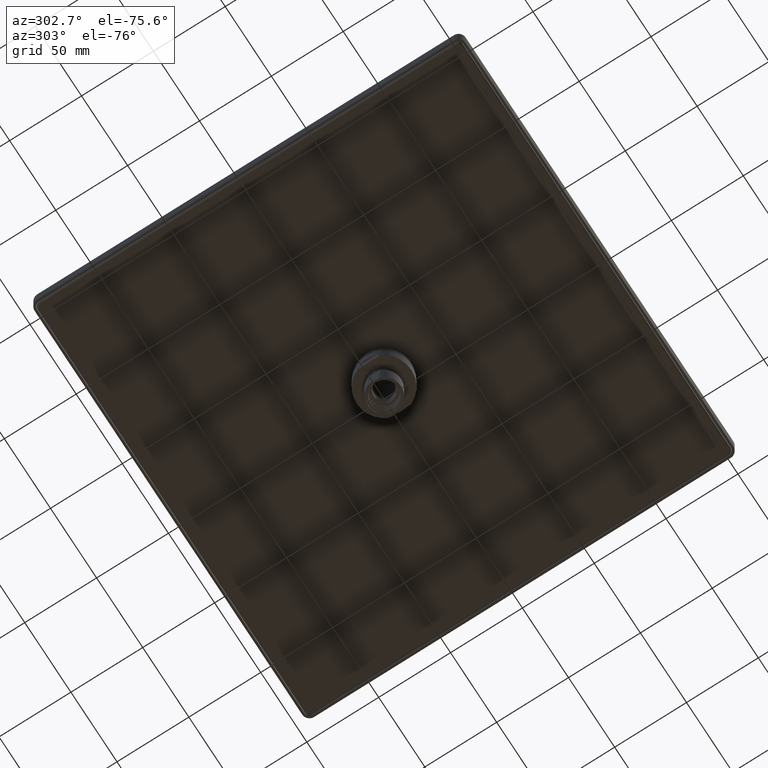
[diagram: clean part render]
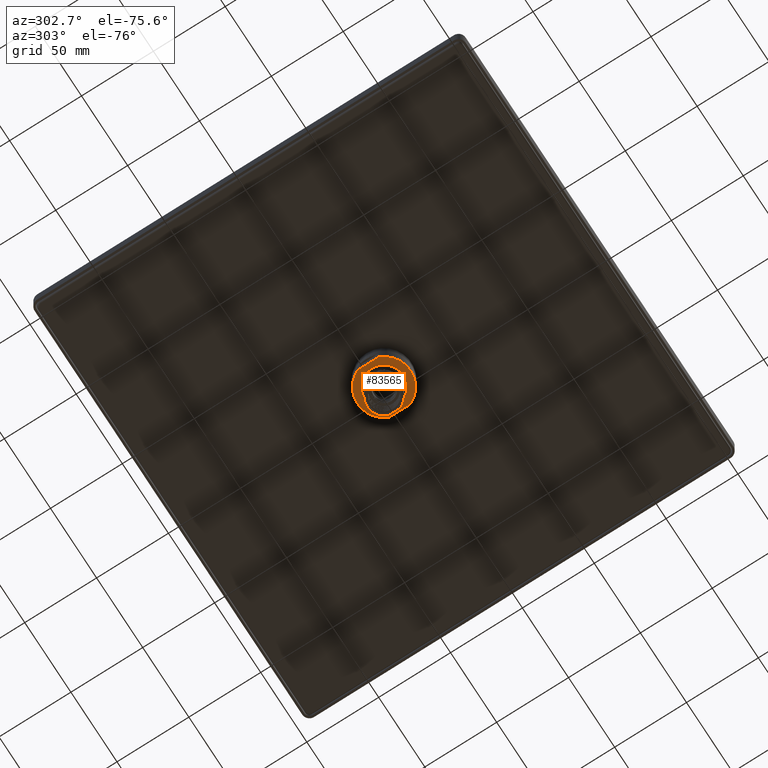
[diagram: same view with one face highlighted and labeled with its STEP entity id]
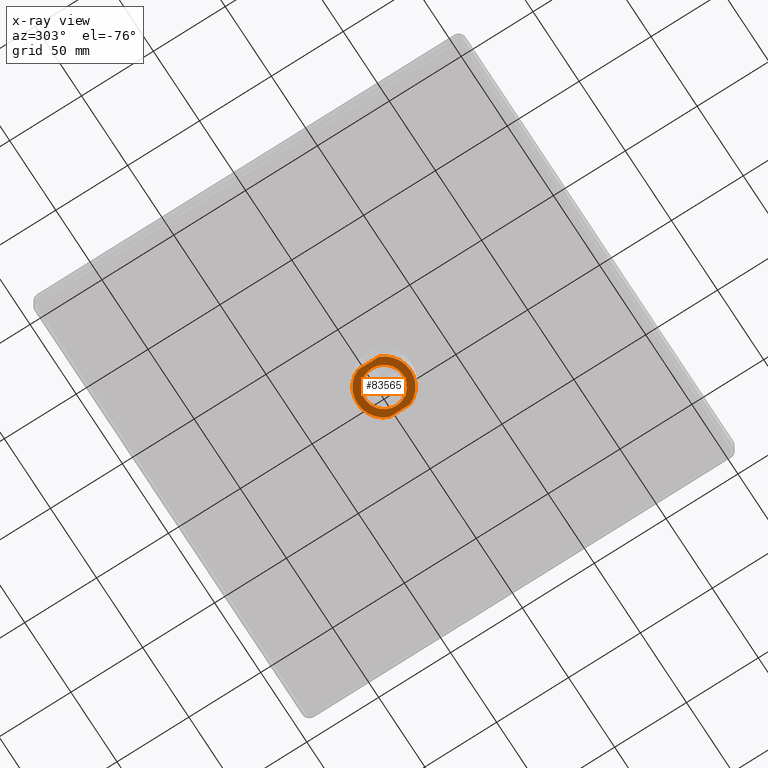
[diagram: x-ray of the same camera — body ghosted, the highlighted face saturated]
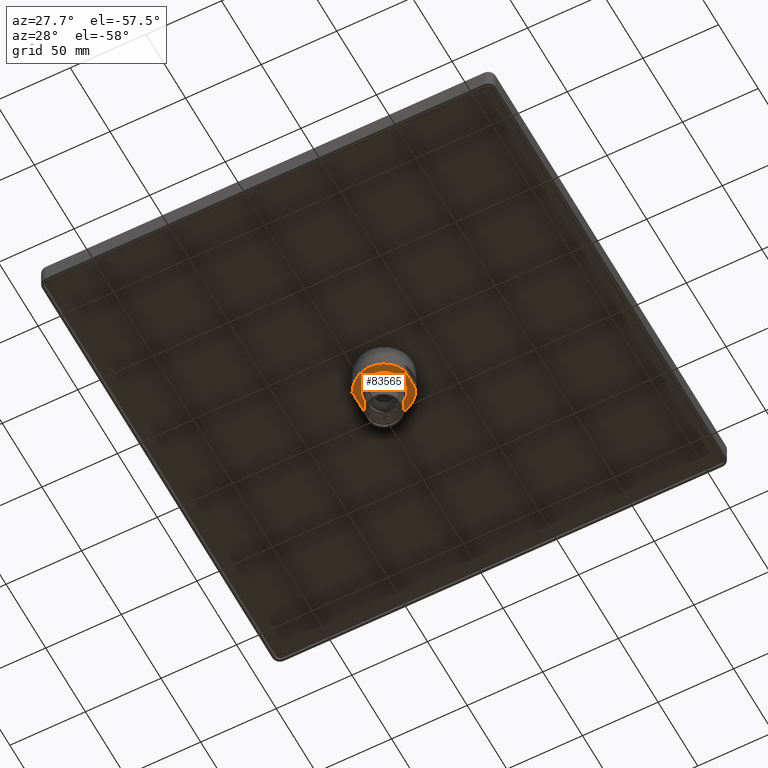
[diagram: same view with one face highlighted and labeled with its STEP entity id]
A machine part, auxiliary view. The second image highlights one B-rep face of the part: STEP entity #83565.
The next image is the same camera in x-ray: the body ghosted, the highlighted face saturated — about 0% of this face is hidden behind the body in this view.
A second angle (auxiliary view) of the same face is appended — the face is thin or edge-on in the first view.
In plain terms, the highlighted planar face has unit normal (0, 0, 1).
Its self-contained STEP definition (entity closure, byte-faithful):
#81228=DIRECTION('',(-1.063583238608E-6,5.257080376817E-11,9.999999999994E-1));
#81229=VECTOR('',#81228,5.745874963107E-1);
#81230=CARTESIAN_POINT('',(-6.692907268857E-1,-3.020656641484E-11,
-2.872938052325E-1));
#81231=LINE('',#81230,#81229);
#81236=CARTESIAN_POINT('',(0.E0,0.E0,0.E0));
#81237=DIRECTION('',(0.E0,-1.E0,0.E0));
#81238=DIRECTION('',(-9.189189189191E-1,0.E0,-3.944464734948E-1));
#81239=AXIS2_PLACEMENT_3D('',#81236,#81237,#81238);
#81241=CARTESIAN_POINT('',(0.E0,0.E0,0.E0));
#81242=DIRECTION('',(0.E0,-1.E0,0.E0));
#81243=DIRECTION('',(9.189189189191E-1,0.E0,3.944464734948E-1));
#81244=AXIS2_PLACEMENT_3D('',#81241,#81242,#81243);
#81246=CARTESIAN_POINT('',(0.E0,0.E0,0.E0));
#81247=DIRECTION('',(0.E0,1.E0,0.E0));
#81248=DIRECTION('',(1.E0,0.E0,0.E0));
#81249=AXIS2_PLACEMENT_3D('',#81246,#81247,#81248);
#81251=CARTESIAN_POINT('',(0.E0,0.E0,0.E0));
#81252=DIRECTION('',(0.E0,1.E0,0.E0));
#81253=DIRECTION('',(-1.E0,0.E0,0.E0));
#81254=AXIS2_PLACEMENT_3D('',#81251,#81252,#81253);
#81294=DIRECTION('',(1.178984440442E-7,0.E0,-1.E0));
#81295=VECTOR('',#81294,5.745875415571E-1);
#81296=CARTESIAN_POINT('',(6.692912702653E-1,0.E0,2.872938504792E-1));
#81297=LINE('',#81296,#81295);
#82755=CARTESIAN_POINT('',(-5.275590551181E-1,0.E0,0.E0));
#82756=CARTESIAN_POINT('',(5.275590551181E-1,0.E0,0.E0));
#82757=VERTEX_POINT('',#82755);
#82758=VERTEX_POINT('',#82756);
#82759=CARTESIAN_POINT('',(-6.692907268857E-1,-3.020656641484E-11,
-2.872938052325E-1));
#82760=CARTESIAN_POINT('',(-6.692913380073E-1,0.E0,2.872936910779E-1));
#82761=VERTEX_POINT('',#82759);
#82762=VERTEX_POINT('',#82760);
#82763=CARTESIAN_POINT('',(6.692913385827E-1,0.E0,-2.872936913253E-1));
#82764=VERTEX_POINT('',#82763);
#82765=CARTESIAN_POINT('',(6.692912702653E-1,0.E0,2.872938504792E-1));
#82766=VERTEX_POINT('',#82765);
#83546=CARTESIAN_POINT('',(0.E0,0.E0,0.E0));
#83547=DIRECTION('',(0.E0,-1.E0,0.E0));
#83548=DIRECTION('',(-1.E0,0.E0,0.E0));
#83549=AXIS2_PLACEMENT_3D('',#83546,#83547,#83548);
#83550=PLANE('',#83549);
#83551=ORIENTED_EDGE('',*,*,#83537,.F.);
#83553=ORIENTED_EDGE('',*,*,#83552,.T.);
#83555=ORIENTED_EDGE('',*,*,#83554,.F.);
#83556=ORIENTED_EDGE('',*,*,#83382,.T.);
#83557=EDGE_LOOP('',(#83551,#83553,#83555,#83556));
#83558=FACE_OUTER_BOUND('',#83557,.F.);
#83560=ORIENTED_EDGE('',*,*,#83559,.T.);
#83562=ORIENTED_EDGE('',*,*,#83561,.T.);
#83563=EDGE_LOOP('',(#83560,#83562));
#83564=FACE_BOUND('',#83563,.F.);
#83565=ADVANCED_FACE('',(#83558,#83564),#83550,.F.);
#81240=CIRCLE('',#81239,7.283464566929E-1);
#81245=CIRCLE('',#81244,7.283464566929E-1);
#81250=CIRCLE('',#81249,5.275590551181E-1);
#81255=CIRCLE('',#81254,5.275590551181E-1);
#83382=EDGE_CURVE('',#82766,#82762,#81245,.T.);
#83537=EDGE_CURVE('',#82761,#82762,#81231,.T.);
#83552=EDGE_CURVE('',#82761,#82764,#81240,.T.);
#83554=EDGE_CURVE('',#82766,#82764,#81297,.T.);
#83559=EDGE_CURVE('',#82758,#82757,#81250,.T.);
#83561=EDGE_CURVE('',#82757,#82758,#81255,.T.);